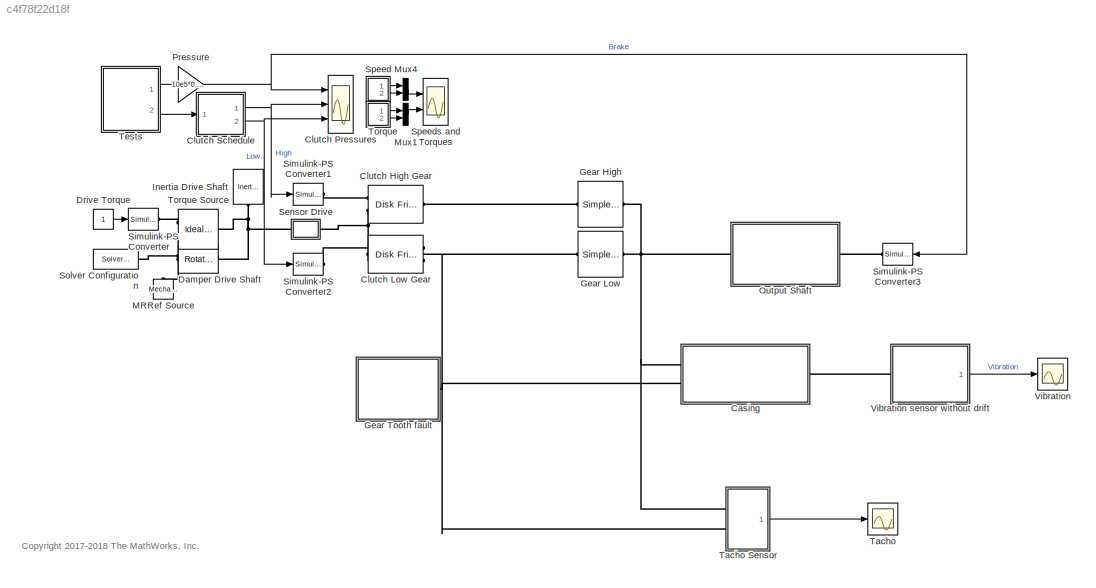
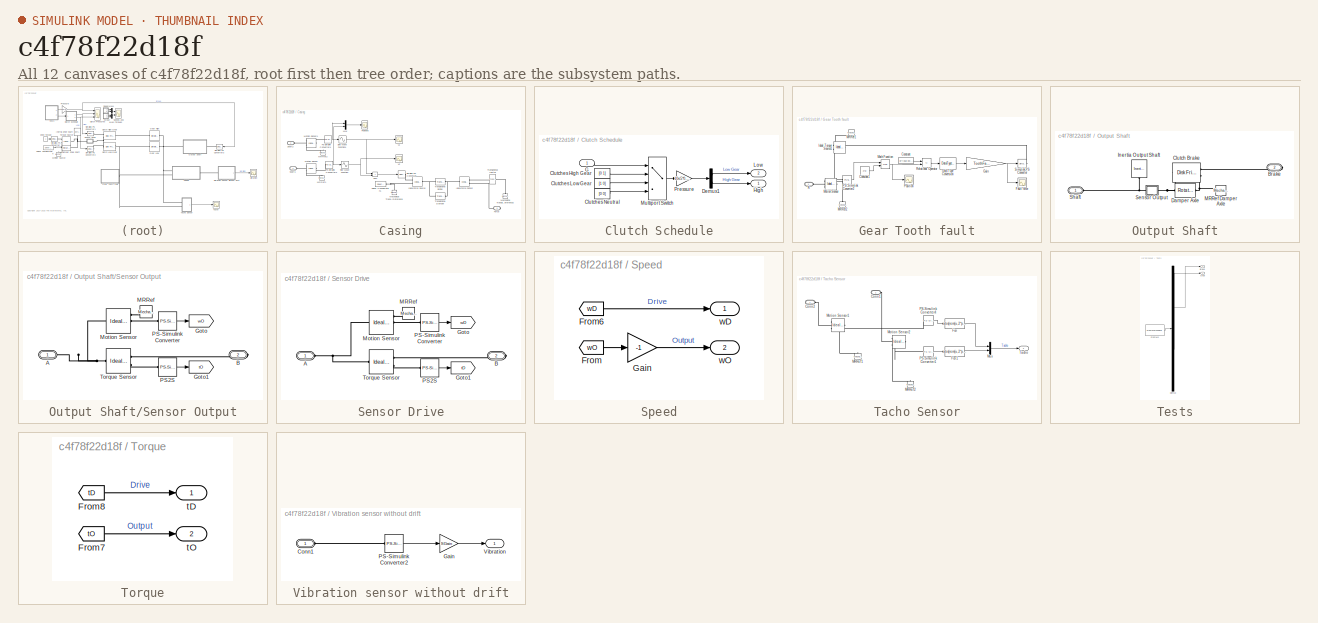
[diagram: thumbnail index - all 12 canvases of the model, root first then tree order]
MODEL slx_c4f78f22d18f
KIND model
CONFIG AbsTol = 1e-3
CONFIG EnableMultiTasking = on
CONFIG FixedStep = auto
CONFIG MaxStep = 0.05
CONFIG MinStep = auto
CONFIG PreLoadFcn = ClutchRadius   = 100;\nDampingCoeff   = 0.1;\nSGain          = 1;\nVariant        = 0;\nToothFaultGain = 0;\nSDrift         = 0;\n
CONFIG RelTol = 1e-3
CONFIG SampleTimeConstraint = Unconstrained
CONFIG SolverName = ode23t
CONFIG StartTime = 0.0
CONFIG StopTime = 20
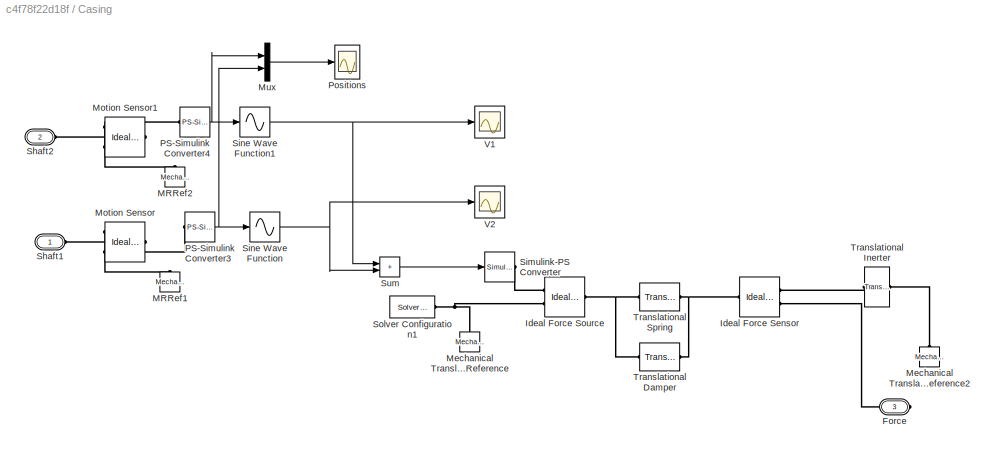
BLOCK [SubSystem] Casing
  Ports = [0, 0, 0, 0, 0, 2, 1]
  RequestExecContextInheritance = off
BLOCK [PMIOPort] Casing/Force
  Port = 3
  Side = Right
BLOCK [Reference] Casing/Ideal Force Sensor  REF=fl_lib/Mechanical/Mechanical Sensors/Ideal Force Sensor
  Ports = [0, 0, 0, 0, 0, 1, 2]
  SourceBlock = fl_lib/Mechanical/Mechanical Sensors/Ideal Force Sensor
  SourceProductBaseCode = PW,SS,VE
  SourceType = Ideal Force Sensor
BLOCK [Reference] Casing/Ideal Force Source  REF=fl_lib/Mechanical/Mechanical Sources/Ideal Force Source
  Ports = [0, 0, 0, 0, 0, 1, 2]
  SourceBlock = fl_lib/Mechanical/Mechanical Sources/Ideal Force Source
  SourceProductBaseCode = PW,SS,VE
  SourceType = Ideal Force Source
BLOCK [Reference] Casing/MRRef1  REF=fl_lib/Mechanical/Rotational Elements/Mechanical
Rotational Reference
  Ports = [0, 0, 0, 0, 0, 1]
  SourceBlock = fl_lib/Mechanical/Rotational Elements/Mechanical\nRotational Reference
  SourceProductBaseCode = PW,SS,VE
  SourceType = Mechanical\nRotational Reference
BLOCK [Reference] Casing/MRRef2  REF=fl_lib/Mechanical/Rotational Elements/Mechanical
Rotational Reference
  Ports = [0, 0, 0, 0, 0, 1]
  SourceBlock = fl_lib/Mechanical/Rotational Elements/Mechanical\nRotational Reference
  SourceProductBaseCode = PW,SS,VE
  SourceType = Mechanical\nRotational Reference
BLOCK [Reference] Casing/Mechanical Translational Reference  REF=fl_lib/Mechanical/Translational
Elements/Mechanical
Translational
Reference
  Ports = [0, 0, 0, 0, 0, 1]
  SourceBlock = fl_lib/Mechanical/Translational\nElements/Mechanical\nTranslational\nReference
  SourceProductBaseCode = PW,SS,VE
  SourceType = Mechanical\nTranslational\nReference
BLOCK [Reference] Casing/Mechanical Translational Reference2  REF=fl_lib/Mechanical/Translational
Elements/Mechanical
Translational
Reference
  Ports = [0, 0, 0, 0, 0, 1]
  SourceBlock = fl_lib/Mechanical/Translational\nElements/Mechanical\nTranslational\nReference
  SourceProductBaseCode = PW,SS,VE
  SourceType = Mechanical\nTranslational\nReference
BLOCK [Reference] Casing/Motion Sensor  REF=fl_lib/Mechanical/Mechanical Sensors/Ideal Rotational
Motion Sensor
  Ports = [0, 0, 0, 0, 0, 1, 3]
  SourceBlock = fl_lib/Mechanical/Mechanical Sensors/Ideal Rotational\nMotion Sensor
  SourceProductBaseCode = PW,SS,VE
  SourceType = Ideal Rotational\nMotion Sensor
BLOCK [Reference] Casing/Motion Sensor1  REF=fl_lib/Mechanical/Mechanical Sensors/Ideal Rotational
Motion Sensor
  Ports = [0, 0, 0, 0, 0, 1, 3]
  SourceBlock = fl_lib/Mechanical/Mechanical Sensors/Ideal Rotational\nMotion Sensor
  SourceProductBaseCode = PW,SS,VE
  SourceType = Ideal Rotational\nMotion Sensor
BLOCK [Mux] Casing/Mux
  DisplayOption = bar
  Inputs = 2
  Ports = [2, 1]
BLOCK [Reference] Casing/PS-Simulink Converter3  REF=nesl_utility/PS-Simulink
Converter
  Ports = [0, 1, 0, 0, 0, 1]
  SourceBlock = nesl_utility/PS-Simulink\nConverter
  SourceProductBaseCode = SS,PW,VE
  SourceType = PS-Simulink\nConverter
BLOCK [Reference] Casing/PS-Simulink Converter4  REF=nesl_utility/PS-Simulink
Converter
  Ports = [0, 1, 0, 0, 0, 1]
  SourceBlock = nesl_utility/PS-Simulink\nConverter
  SourceProductBaseCode = SS,PW,VE
  SourceType = PS-Simulink\nConverter
BLOCK [Scope] Casing/Positions
  Floating = off
  NumInputPorts = 1
  Ports = [1]
  ScopeSpecificationString = Simulink.scopes.TimeScopeBlockCfg('CurrentConfiguration', extmgr.ConfigurationSet(extmgr.Configuration('Core','General UI',true),extmgr.Configuration('Core','Source UI',true),extmgr.Configuration('Sources','WiredSimulink',true,'DataLoggingSaveFormat','StructureWithTime','DataLoggingMaxPoints','50000','DataLoggingDecimation','1','DataLoggingDecimateData',true,'DataLoggingVariableName','ScopeData1')...<+1967ch>
BLOCK [PMIOPort] Casing/Shaft1
  NameLocation = top
  Side = Left
BLOCK [PMIOPort] Casing/Shaft2
  NameLocation = top
  Port = 2
  Side = Left
BLOCK [Reference] Casing/Simulink-PS Converter  REF=nesl_utility/Simulink-PS
Converter
  Ports = [1, 0, 0, 0, 0, 0, 1]
  SourceBlock = nesl_utility/Simulink-PS\nConverter
  SourceProductBaseCode = SS,PW,VE
  SourceType = Simulink-PS\nConverter
BLOCK [Sin] Casing/Sine Wave Function
  Ports = [1, 1]
  SampleTime = 0
  TimeSource = Use external signal
BLOCK [Sin] Casing/Sine Wave Function1
  Ports = [1, 1]
  SampleTime = 0
  TimeSource = Use external signal
BLOCK [Reference] Casing/Solver Configuration1  REF=nesl_utility/Solver
Configuration
  Ports = [0, 0, 0, 0, 0, 0, 1]
  SourceBlock = nesl_utility/Solver\nConfiguration
  SourceProductBaseCode = SS,PW,VE
  SourceType = Solver\nConfiguration
BLOCK [Sum] Casing/Sum
  IconShape = rectangular
  Ports = [2, 1]
BLOCK [Reference] Casing/Translational Damper  REF=fl_lib/Mechanical/Translational
Elements/Translational Damper
  Ports = [0, 0, 0, 0, 0, 1, 1]
  SourceBlock = fl_lib/Mechanical/Translational\nElements/Translational Damper
  SourceProductBaseCode = PW,SS,VE
  SourceType = Translational Damper
BLOCK [Reference] Casing/Translational Inerter  REF=fl_lib/Mechanical/Translational
Elements/Translational
Inerter
  Ports = [0, 0, 0, 0, 0, 1, 1]
  SourceBlock = fl_lib/Mechanical/Translational\nElements/Translational\nInerter
  SourceProductBaseCode = PW,SS,VE
  SourceType = Translational\nInerter
BLOCK [Reference] Casing/Translational Spring  REF=fl_lib/Mechanical/Translational
Elements/Translational Spring
  Ports = [0, 0, 0, 0, 0, 1, 1]
  SourceBlock = fl_lib/Mechanical/Translational\nElements/Translational Spring
  SourceProductBaseCode = PW,SS,VE
  SourceType = Translational Spring
BLOCK [Scope] Casing/V1
  Floating = off
  NumInputPorts = 1
  Ports = [1]
  ScopeSpecificationString = Simulink.scopes.TimeScopeBlockCfg('CurrentConfiguration', extmgr.ConfigurationSet(extmgr.Configuration('Core','General UI',true),extmgr.Configuration('Core','Source UI',true),extmgr.Configuration('Sources','WiredSimulink',true,'DataLoggingSaveFormat','StructureWithTime','DataLoggingMaxPoints','50000','DataLoggingDecimation','1','DataLoggingDecimateData',true,'DataLoggingVariableName','CaseForce1')...<+1957ch>
BLOCK [Scope] Casing/V2
  Floating = off
  NumInputPorts = 1
  Ports = [1]
  ScopeSpecificationString = Simulink.scopes.TimeScopeBlockCfg('CurrentConfiguration', extmgr.ConfigurationSet(extmgr.Configuration('Core','General UI',true),extmgr.Configuration('Core','Source UI',true),extmgr.Configuration('Sources','WiredSimulink',true,'DataLoggingSaveFormat','StructureWithTime','DataLoggingMaxPoints','50000','DataLoggingDecimation','1','DataLoggingDecimateData',true,'DataLoggingVariableName','CaseForce2')...<+1960ch>
BLOCK [Reference] Clutch High Gear  REF=sdl_lib/Clutches/Disk Friction Clutch
  NameLocation = top
  Ports = [0, 0, 0, 0, 0, 2, 1]
  SourceBlock = sdl_lib/Clutches/Disk Friction Clutch
  SourceProductBaseCode = LD
  SourceType = Disk Friction Clutch
BLOCK [Reference] Clutch Low Gear  REF=sdl_lib/Clutches/Disk Friction Clutch
  Ports = [0, 0, 0, 0, 0, 2, 1]
  SourceBlock = sdl_lib/Clutches/Disk Friction Clutch
  SourceProductBaseCode = LD
  SourceType = Disk Friction Clutch
BLOCK [Scope] Clutch Pressures
  Floating = off
  NumInputPorts = 3
  Ports = [3]
  ScopeSpecificationString = Simulink.scopes.TimeScopeBlockCfg('CurrentConfiguration', extmgr.ConfigurationSet(extmgr.Configuration('Core','General UI',true),extmgr.Configuration('Core','Source UI',true),extmgr.Configuration('Sources','WiredSimulink',true,'DataLoggingVariableName','ScopeData1','DataLoggingSaveFormat','StructureWithTime','DataLoggingMaxPoints','50000','DataLoggingLimitDataPoints',true,'DataLoggingDecimation','...<+2015ch>
BLOCK [SubSystem] Clutch Schedule
  Ports = [1, 2]
  RequestExecContextInheritance = off
BLOCK [Constant] Clutch Schedule/Clutches High Gear
  Value = [0 1]
BLOCK [Constant] Clutch Schedule/Clutches Low Gear
  Value = [1 0]
BLOCK [Constant] Clutch Schedule/Clutches Neutral
  Value = [0 0]
BLOCK [Demux] Clutch Schedule/Demux1
  Outputs = 2
  Ports = [1, 2]
BLOCK [Inport] Clutch Schedule/G
BLOCK [Outport] Clutch Schedule/High
  VectorParamsAs1DForOutWhenUnconnected = off
BLOCK [Outport] Clutch Schedule/Low
  NameLocation = top
  Port = 2
  VectorParamsAs1DForOutWhenUnconnected = off
BLOCK [MultiPortSwitch] Clutch Schedule/Multiport Switch
  DataPortIndices = {2,1,0}
  DataPortOrder = Specify indices
  InputSameDT = off
  Ports = [4, 1]
  SaturateOnIntegerOverflow = off
BLOCK [Gain] Clutch Schedule/Pressure
  Gain = 10e5*0.05
  OutDataTypeStr = Inherit: Same as input
  ParamDataTypeStr = Inherit: Same as input
  SaturateOnIntegerOverflow = on
BLOCK [Reference] Damper Drive Shaft  REF=fl_lib/Mechanical/Rotational Elements/Rotational Damper
  Ports = [0, 0, 0, 0, 0, 1, 1]
  SourceBlock = fl_lib/Mechanical/Rotational Elements/Rotational Damper
  SourceProductBaseCode = PW,SS,VE
  SourceType = Rotational Damper
BLOCK [Constant] Drive Torque
  NameLocation = top
BLOCK [Reference] Gear High  REF=sdl_lib/Gears/Simple Gear
  NameLocation = top
  Ports = [0, 0, 0, 0, 0, 1, 1]
  SourceBlock = sdl_lib/Gears/Simple Gear
  SourceProductBaseCode = LD
  SourceType = Simple Gear
BLOCK [Reference] Gear Low  REF=sdl_lib/Gears/Simple Gear
  Ports = [0, 0, 0, 0, 0, 1, 1]
  SourceBlock = sdl_lib/Gears/Simple Gear
  SourceProductBaseCode = LD
  SourceType = Simple Gear
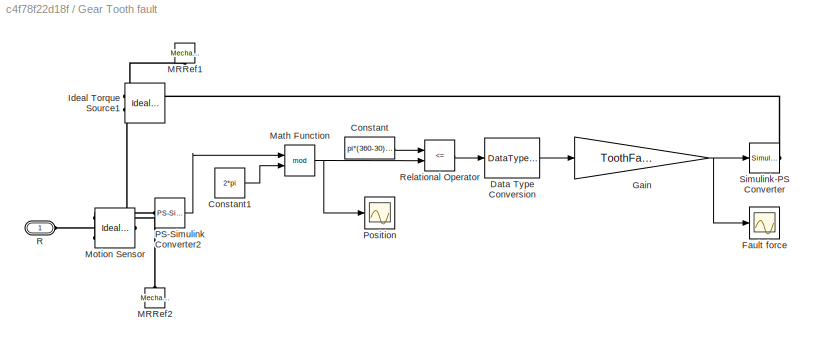
BLOCK [SubSystem] Gear Tooth fault
  Ports = [0, 0, 0, 0, 0, 1]
  RequestExecContextInheritance = off
BLOCK [Constant] Gear Tooth fault/Constant
  Value = pi*(360-30)/180
BLOCK [Constant] Gear Tooth fault/Constant1
  Value = 2*pi
BLOCK [DataTypeConversion] Gear Tooth fault/Data Type Conversion
  OutDataTypeStr = double
  RndMeth = Floor
  SaturateOnIntegerOverflow = off
BLOCK [Scope] Gear Tooth fault/Fault force
  Floating = off
  NumInputPorts = 1
  Ports = [1]
  ScopeSpecificationString = Simulink.scopes.TimeScopeBlockCfg('CurrentConfiguration', extmgr.ConfigurationSet(extmgr.Configuration('Core','General UI',true),extmgr.Configuration('Core','Source UI',true),extmgr.Configuration('Sources','WiredSimulink',true,'DataLoggingSaveFormat','StructureWithTime','DataLoggingMaxPoints','50000','DataLoggingLimitDataPoints',true,'DataLoggingDecimation','1','DataLoggingDecimateData',true,'Data...<+1963ch>
BLOCK [Gain] Gear Tooth fault/Gain
  Gain = ToothFaultGain
BLOCK [Reference] Gear Tooth fault/Ideal Torque Source1  REF=fl_lib/Mechanical/Mechanical Sources/Ideal Torque Source
  NameLocation = top
  Ports = [0, 0, 0, 0, 0, 1, 2]
  SourceBlock = fl_lib/Mechanical/Mechanical Sources/Ideal Torque Source
  SourceProductBaseCode = PW,SS,VE
  SourceType = Ideal Torque Source
BLOCK [Reference] Gear Tooth fault/MRRef1  REF=fl_lib/Mechanical/Rotational Elements/Mechanical
Rotational Reference
  NameLocation = left
  Ports = [0, 0, 0, 0, 0, 1]
  SourceBlock = fl_lib/Mechanical/Rotational Elements/Mechanical\nRotational Reference
  SourceProductBaseCode = PW,SS,VE
  SourceType = Mechanical\nRotational Reference
BLOCK [Reference] Gear Tooth fault/MRRef2  REF=fl_lib/Mechanical/Rotational Elements/Mechanical
Rotational Reference
  Ports = [0, 0, 0, 0, 0, 1]
  SourceBlock = fl_lib/Mechanical/Rotational Elements/Mechanical\nRotational Reference
  SourceProductBaseCode = PW,SS,VE
  SourceType = Mechanical\nRotational Reference
BLOCK [Math] Gear Tooth fault/Math Function
  Operator = mod
  Ports = [2, 1]
  SignedPower = on
BLOCK [Reference] Gear Tooth fault/Motion Sensor  REF=fl_lib/Mechanical/Mechanical Sensors/Ideal Rotational
Motion Sensor
  Ports = [0, 0, 0, 0, 0, 1, 3]
  SourceBlock = fl_lib/Mechanical/Mechanical Sensors/Ideal Rotational\nMotion Sensor
  SourceProductBaseCode = PW,SS,VE
  SourceType = Ideal Rotational\nMotion Sensor
BLOCK [Reference] Gear Tooth fault/PS-Simulink Converter2  REF=nesl_utility/PS-Simulink
Converter
  Ports = [0, 1, 0, 0, 0, 1]
  SourceBlock = nesl_utility/PS-Simulink\nConverter
  SourceProductBaseCode = SS,PW,VE
  SourceType = PS-Simulink\nConverter
BLOCK [Scope] Gear Tooth fault/Position
  Floating = off
  NumInputPorts = 1
  Ports = [1]
  ScopeSpecificationString = Simulink.scopes.TimeScopeBlockCfg('CurrentConfiguration', extmgr.ConfigurationSet(extmgr.Configuration('Core','General UI',true),extmgr.Configuration('Core','Source UI',true),extmgr.Configuration('Sources','WiredSimulink',true,'DataLoggingSaveFormat','StructureWithTime','DataLoggingMaxPoints','50000','DataLoggingLimitDataPoints',true,'DataLoggingDecimation','1','DataLoggingDecimateData',true,'Data...<+1961ch>
BLOCK [PMIOPort] Gear Tooth fault/R
  Side = Left
BLOCK [RelationalOperator] Gear Tooth fault/Relational Operator
  InputSameDT = off
  Operator = <=
  OutDataTypeStr = boolean
  Ports = [2, 1]
  RndMeth = Simplest
BLOCK [Reference] Gear Tooth fault/Simulink-PS Converter  REF=nesl_utility/Simulink-PS
Converter
  Ports = [1, 0, 0, 0, 0, 0, 1]
  SourceBlock = nesl_utility/Simulink-PS\nConverter
  SourceProductBaseCode = SS,PW,VE
  SourceType = Simulink-PS\nConverter
BLOCK [Reference] Inertia Drive Shaft  REF=fl_lib/Mechanical/Rotational Elements/Inertia
  NameLocation = left
  Ports = [0, 0, 0, 0, 0, 1]
  SourceBlock = fl_lib/Mechanical/Rotational Elements/Inertia
  SourceProductBaseCode = PW,SS,VE
  SourceType = Inertia
BLOCK [Reference] MRRef Source  REF=fl_lib/Mechanical/Rotational Elements/Mechanical
Rotational Reference
  Ports = [0, 0, 0, 0, 0, 1]
  SourceBlock = fl_lib/Mechanical/Rotational Elements/Mechanical\nRotational Reference
  SourceProductBaseCode = PW,SS,VE
  SourceType = Mechanical\nRotational Reference
BLOCK [Mux] Mux1
  DisplayOption = bar
  Inputs = 2
  Ports = [2, 1]
BLOCK [Mux] Mux4
  DisplayOption = bar
  Inputs = 2
  Ports = [2, 1]
BLOCK [SubSystem] Output Shaft
  Ports = [0, 0, 0, 0, 0, 1, 1]
  RequestExecContextInheritance = off
BLOCK [PMIOPort] Output Shaft/Brake
  Port = 2
  Side = Right
BLOCK [Reference] Output Shaft/Clutch Brake  REF=sdl_lib/Clutches/Disk Friction Clutch
  NameLocation = top
  Ports = [0, 0, 0, 0, 0, 2, 1]
  SourceBlock = sdl_lib/Clutches/Disk Friction Clutch
  SourceProductBaseCode = LD
  SourceType = Disk Friction Clutch
BLOCK [Reference] Output Shaft/Damper Axle  REF=fl_lib/Mechanical/Rotational Elements/Rotational Damper
  Ports = [0, 0, 0, 0, 0, 1, 1]
  SourceBlock = fl_lib/Mechanical/Rotational Elements/Rotational Damper
  SourceProductBaseCode = PW,SS,VE
  SourceType = Rotational Damper
BLOCK [Reference] Output Shaft/Inertia Output Shaft  REF=fl_lib/Mechanical/Rotational Elements/Inertia
  Ports = [0, 0, 0, 0, 0, 1]
  SourceBlock = fl_lib/Mechanical/Rotational Elements/Inertia
  SourceProductBaseCode = PW,SS,VE
  SourceType = Inertia
BLOCK [Reference] Output Shaft/MRRef Damper Axle  REF=fl_lib/Mechanical/Rotational Elements/Mechanical
Rotational Reference
  NameLocation = top
  Ports = [0, 0, 0, 0, 0, 1]
  SourceBlock = fl_lib/Mechanical/Rotational Elements/Mechanical\nRotational Reference
  SourceProductBaseCode = PW,SS,VE
  SourceType = Mechanical\nRotational Reference
BLOCK [SubSystem] Output Shaft/Sensor Output
  Ports = [0, 0, 0, 0, 0, 1, 1]
  RequestExecContextInheritance = off
BLOCK [PMIOPort] Output Shaft/Sensor Output/A
  Side = Left
BLOCK [PMIOPort] Output Shaft/Sensor Output/B
  Port = 2
  Side = Right
BLOCK [Goto] Output Shaft/Sensor Output/Goto
  GotoTag = wO
  TagVisibility = global
BLOCK [Goto] Output Shaft/Sensor Output/Goto1
  GotoTag = tO
  TagVisibility = global
BLOCK [Reference] Output Shaft/Sensor Output/MRRef  REF=fl_lib/Mechanical/Rotational Elements/Mechanical
Rotational Reference
  NameLocation = top
  Ports = [0, 0, 0, 0, 0, 1]
  SourceBlock = fl_lib/Mechanical/Rotational Elements/Mechanical\nRotational Reference
  SourceProductBaseCode = PW,SS,VE
  SourceType = Mechanical\nRotational Reference
BLOCK [Reference] Output Shaft/Sensor Output/Motion Sensor  REF=fl_lib/Mechanical/Mechanical Sensors/Ideal Rotational
Motion Sensor
  Ports = [0, 0, 0, 0, 0, 1, 3]
  SourceBlock = fl_lib/Mechanical/Mechanical Sensors/Ideal Rotational\nMotion Sensor
  SourceProductBaseCode = PW,SS,VE
  SourceType = Ideal Rotational\nMotion Sensor
BLOCK [Reference] Output Shaft/Sensor Output/PS-Simulink Converter  REF=nesl_utility/PS-Simulink
Converter
  Ports = [0, 1, 0, 0, 0, 1]
  SourceBlock = nesl_utility/PS-Simulink\nConverter
  SourceProductBaseCode = SS,PW,VE
  SourceType = PS-Simulink\nConverter
BLOCK [Reference] Output Shaft/Sensor Output/PS2S  REF=nesl_utility/PS-Simulink
Converter
  Ports = [0, 1, 0, 0, 0, 1]
  SourceBlock = nesl_utility/PS-Simulink\nConverter
  SourceProductBaseCode = SS,PW,VE
  SourceType = PS-Simulink\nConverter
BLOCK [Reference] Output Shaft/Sensor Output/Torque Sensor  REF=fl_lib/Mechanical/Mechanical Sensors/Ideal Torque Sensor
  Ports = [0, 0, 0, 0, 0, 1, 2]
  SourceBlock = fl_lib/Mechanical/Mechanical Sensors/Ideal Torque Sensor
  SourceProductBaseCode = PW,SS,VE
  SourceType = Ideal Torque Sensor
BLOCK [PMIOPort] Output Shaft/Shaft
  Side = Left
BLOCK [Gain] Pressure
  Gain = 10e5*0.03
  NameLocation = top
  OutDataTypeStr = Inherit: Same as input
  ParamDataTypeStr = Inherit: Same as input
  SaturateOnIntegerOverflow = on
BLOCK [SubSystem] Sensor Drive
  Ports = [0, 0, 0, 0, 0, 1, 1]
  RequestExecContextInheritance = off
BLOCK [PMIOPort] Sensor Drive/A
  Side = Left
BLOCK [PMIOPort] Sensor Drive/B
  NameLocation = top
  Port = 2
  Side = Right
BLOCK [Goto] Sensor Drive/Goto
  GotoTag = wD
  TagVisibility = global
BLOCK [Goto] Sensor Drive/Goto1
  GotoTag = tD
  TagVisibility = global
BLOCK [Reference] Sensor Drive/MRRef  REF=fl_lib/Mechanical/Rotational Elements/Mechanical
Rotational Reference
  NameLocation = top
  Ports = [0, 0, 0, 0, 0, 1]
  SourceBlock = fl_lib/Mechanical/Rotational Elements/Mechanical\nRotational Reference
  SourceProductBaseCode = PW,SS,VE
  SourceType = Mechanical\nRotational Reference
BLOCK [Reference] Sensor Drive/Motion Sensor  REF=fl_lib/Mechanical/Mechanical Sensors/Ideal Rotational
Motion Sensor
  Ports = [0, 0, 0, 0, 0, 1, 3]
  SourceBlock = fl_lib/Mechanical/Mechanical Sensors/Ideal Rotational\nMotion Sensor
  SourceProductBaseCode = PW,SS,VE
  SourceType = Ideal Rotational\nMotion Sensor
BLOCK [Reference] Sensor Drive/PS-Simulink Converter  REF=nesl_utility/PS-Simulink
Converter
  Ports = [0, 1, 0, 0, 0, 1]
  SourceBlock = nesl_utility/PS-Simulink\nConverter
  SourceProductBaseCode = SS,PW,VE
  SourceType = PS-Simulink\nConverter
BLOCK [Reference] Sensor Drive/PS2S  REF=nesl_utility/PS-Simulink
Converter
  Ports = [0, 1, 0, 0, 0, 1]
  SourceBlock = nesl_utility/PS-Simulink\nConverter
  SourceProductBaseCode = SS,PW,VE
  SourceType = PS-Simulink\nConverter
BLOCK [Reference] Sensor Drive/Torque Sensor  REF=fl_lib/Mechanical/Mechanical Sensors/Ideal Torque Sensor
  Ports = [0, 0, 0, 0, 0, 1, 2]
  SourceBlock = fl_lib/Mechanical/Mechanical Sensors/Ideal Torque Sensor
  SourceProductBaseCode = PW,SS,VE
  SourceType = Ideal Torque Sensor
BLOCK [Reference] Simulink-PS Converter  REF=nesl_utility/Simulink-PS
Converter
  Ports = [1, 0, 0, 0, 0, 0, 1]
  SourceBlock = nesl_utility/Simulink-PS\nConverter
  SourceProductBaseCode = SS,PW,VE
  SourceType = Simulink-PS\nConverter
BLOCK [Reference] Simulink-PS Converter1  REF=nesl_utility/Simulink-PS
Converter
  Ports = [1, 0, 0, 0, 0, 0, 1]
  SourceBlock = nesl_utility/Simulink-PS\nConverter
  SourceProductBaseCode = SS,PW,VE
  SourceType = Simulink-PS\nConverter
BLOCK [Reference] Simulink-PS Converter2  REF=nesl_utility/Simulink-PS
Converter
  Ports = [1, 0, 0, 0, 0, 0, 1]
  SourceBlock = nesl_utility/Simulink-PS\nConverter
  SourceProductBaseCode = SS,PW,VE
  SourceType = Simulink-PS\nConverter
BLOCK [Reference] Simulink-PS Converter3  REF=nesl_utility/Simulink-PS
Converter
  NameLocation = top
  Ports = [1, 0, 0, 0, 0, 0, 1]
  SourceBlock = nesl_utility/Simulink-PS\nConverter
  SourceProductBaseCode = SS,PW,VE
  SourceType = Simulink-PS\nConverter
BLOCK [Reference] Solver Configuration  REF=nesl_utility/Solver
Configuration
  Ports = [0, 0, 0, 0, 0, 0, 1]
  SourceBlock = nesl_utility/Solver\nConfiguration
  SourceProductBaseCode = SS,PW,VE
  SourceType = Solver\nConfiguration
BLOCK [SubSystem] Speed
  NameLocation = top
  Ports = [0, 2]
  RequestExecContextInheritance = off
BLOCK [From] Speed/From
  GotoTag = wO
  TagVisibility = global
BLOCK [From] Speed/From6
  GotoTag = wD
  TagVisibility = global
BLOCK [Gain] Speed/Gain
  Gain = -1
BLOCK [Outport] Speed/wD
  VectorParamsAs1DForOutWhenUnconnected = off
BLOCK [Outport] Speed/wO
  Port = 2
  VectorParamsAs1DForOutWhenUnconnected = off
BLOCK [Scope] Speeds and Torques
  Floating = off
  NumInputPorts = 2
  Ports = [2]
  ScopeSpecificationString = Simulink.scopes.TimeScopeBlockCfg('CurrentConfiguration', extmgr.ConfigurationSet(extmgr.Configuration('Core','General UI',true),extmgr.Configuration('Core','Source UI',true),extmgr.Configuration('Sources','WiredSimulink',true,'DataLoggingSaveFormat','StructureWithTime','DataLoggingMaxPoints','50000','DataLoggingLimitDataPoints',true,'DataLoggingDecimation','1','DataLoggingDecimateData',true),extm...<+2744ch>
BLOCK [Scope] Tacho
  Floating = off
  NumInputPorts = 1
  Ports = [1]
  ScopeSpecificationString = Simulink.scopes.TimeScopeBlockCfg('CurrentConfiguration', extmgr.ConfigurationSet(extmgr.Configuration('Core','General UI',true),extmgr.Configuration('Core','Source UI',true),extmgr.Configuration('Sources','WiredSimulink',true,'DataLoggingSaveFormat','StructureWithTime','DataLoggingMaxPoints','50000','DataLoggingDecimation','1','DataLoggingDecimateData',true,'DataLoggingVariableName','Tacho'),extm...<+1957ch>
BLOCK [SubSystem] Tacho Sensor
  Ports = [0, 1, 0, 0, 0, 2]
  RequestExecContextInheritance = off
BLOCK [PMIOPort] Tacho Sensor/Conn1
  Side = Left
BLOCK [PMIOPort] Tacho Sensor/Conn2
  Port = 2
  Side = Left
BLOCK [Fcn] Tacho Sensor/Fcn
  Expr = abs(rem(u,2*pi)) < pi/1000
BLOCK [Fcn] Tacho Sensor/Fcn1
  Expr = abs(rem(u,2*pi)) < pi/1000
BLOCK [Reference] Tacho Sensor/MRRef1  REF=fl_lib/Mechanical/Rotational Elements/Mechanical
Rotational Reference
  Ports = [0, 0, 0, 0, 0, 1]
  SourceBlock = fl_lib/Mechanical/Rotational Elements/Mechanical\nRotational Reference
  SourceProductBaseCode = PW,SS,VE
  SourceType = Mechanical\nRotational Reference
BLOCK [Reference] Tacho Sensor/MRRef2  REF=fl_lib/Mechanical/Rotational Elements/Mechanical
Rotational Reference
  Ports = [0, 0, 0, 0, 0, 1]
  SourceBlock = fl_lib/Mechanical/Rotational Elements/Mechanical\nRotational Reference
  SourceProductBaseCode = PW,SS,VE
  SourceType = Mechanical\nRotational Reference
BLOCK [Reference] Tacho Sensor/Motion Sensor1  REF=fl_lib/Mechanical/Mechanical Sensors/Ideal Rotational
Motion Sensor
  Ports = [0, 0, 0, 0, 0, 1, 3]
  SourceBlock = fl_lib/Mechanical/Mechanical Sensors/Ideal Rotational\nMotion Sensor
  SourceProductBaseCode = PW,SS,VE
  SourceType = Ideal Rotational\nMotion Sensor
BLOCK [Reference] Tacho Sensor/Motion Sensor2  REF=fl_lib/Mechanical/Mechanical Sensors/Ideal Rotational
Motion Sensor
  Ports = [0, 0, 0, 0, 0, 1, 3]
  SourceBlock = fl_lib/Mechanical/Mechanical Sensors/Ideal Rotational\nMotion Sensor
  SourceProductBaseCode = PW,SS,VE
  SourceType = Ideal Rotational\nMotion Sensor
BLOCK [Mux] Tacho Sensor/Mux
  DisplayOption = bar
  Inputs = 2
  Ports = [2, 1]
BLOCK [Reference] Tacho Sensor/PS-Simulink Converter1  REF=nesl_utility/PS-Simulink
Converter
  Ports = [0, 1, 0, 0, 0, 1]
  SourceBlock = nesl_utility/PS-Simulink\nConverter
  SourceProductBaseCode = SS,PW,VE
  SourceType = PS-Simulink\nConverter
BLOCK [Reference] Tacho Sensor/PS-Simulink Converter4  REF=nesl_utility/PS-Simulink
Converter
  Ports = [0, 1, 0, 0, 0, 1]
  SourceBlock = nesl_utility/PS-Simulink\nConverter
  SourceProductBaseCode = SS,PW,VE
  SourceType = PS-Simulink\nConverter
BLOCK [Outport] Tacho Sensor/Tacho
  VectorParamsAs1DForOutWhenUnconnected = off
BLOCK [SubSystem] Tests
  ClipboardFcn = sigbuilder_block('clipboard');
  CloseFcn = sigbuilder_block('close');
  ContinueFcn = sigbuilder_block('continue');
  CopyFcn = sigbuilder_block('copy');
  DeleteFcn = sigbuilder_block('delete');
  LoadFcn = sigbuilder_block('load');
  MaskHideContents = on
  ModelCloseFcn = sigbuilder_block('modelClose');
  NameChangeFcn = sigbuilder_block('namechange');
  OpenFcn = sigbuilder_block('open',[329.25 294 687 318.75 ]);
  PauseFcn = sigbuilder_block('pause');
  Ports = [0, 2]
  PreSaveFcn = sigbuilder_block('preSave');
  RequestExecContextInheritance = off
  StartFcn = sigbuilder_block('start');
  StopFcn = sigbuilder_block('stop');
  Tag = STV Subsys
BLOCK [Outport] Tests/Brake
  Tag = STV Outport
  VectorParamsAs1DForOutWhenUnconnected = off
BLOCK [Demux] Tests/Demux
  DisplayOption = none
  Outputs = 2
  Ports = [1, 2]
  Tag = STV Demux
BLOCK [FromWorkspace] Tests/FromWs
  Tag = STV FromWs
  VariableName = tuvar
BLOCK [Outport] Tests/Gear
  Port = 2
  Tag = STV Outport
  VectorParamsAs1DForOutWhenUnconnected = off
BLOCK [SubSystem] Torque
  Ports = [0, 2]
  RequestExecContextInheritance = off
BLOCK [Reference] Torque Source  REF=fl_lib/Mechanical/Mechanical Sources/Ideal Torque Source
  Ports = [0, 0, 0, 0, 0, 1, 2]
  SourceBlock = fl_lib/Mechanical/Mechanical Sources/Ideal Torque Source
  SourceProductBaseCode = PW,SS,VE
  SourceType = Ideal Torque Source
BLOCK [From] Torque/From7
  GotoTag = tO
  TagVisibility = global
BLOCK [From] Torque/From8
  GotoTag = tD
  TagVisibility = global
BLOCK [Outport] Torque/tD
  VectorParamsAs1DForOutWhenUnconnected = off
BLOCK [Outport] Torque/tO
  Port = 2
  VectorParamsAs1DForOutWhenUnconnected = off
BLOCK [Scope] Vibration
  Floating = off
  NumInputPorts = 1
  Ports = [1]
  ScopeSpecificationString = Simulink.scopes.TimeScopeBlockCfg('CurrentConfiguration', extmgr.ConfigurationSet(extmgr.Configuration('Core','General UI',true),extmgr.Configuration('Core','Source UI',true),extmgr.Configuration('Sources','WiredSimulink',true,'DataLoggingSaveFormat','StructureWithTime','DataLoggingMaxPoints','50000','DataLoggingDecimation','1','DataLoggingDecimateData',true,'DataLoggingVariableName','CaseForce'),...<+1966ch>
BLOCK [SubSystem] Vibration sensor without drift
  Ports = [0, 1, 0, 0, 0, 1]
  RequestExecContextInheritance = off
  VariantControl = Variant < 0
BLOCK [PMIOPort] Vibration sensor without drift/Conn1
  Side = Left
BLOCK [Gain] Vibration sensor without drift/Gain
  Gain = SGain
BLOCK [Reference] Vibration sensor without drift/PS-Simulink Converter2  REF=nesl_utility/PS-Simulink
Converter
  Ports = [0, 1, 0, 0, 0, 1]
  SourceBlock = nesl_utility/PS-Simulink\nConverter
  SourceProductBaseCode = SS,PW,VE
  SourceType = PS-Simulink\nConverter
BLOCK [Outport] Vibration sensor without drift/Vibration
  VectorParamsAs1DForOutWhenUnconnected = off
ANNOTATION (root): <copyright redacted>
LINE Casing/Mux:1 -> Casing/Positions:1
NET Casing/PS-Simulink Converter3:1 -> Casing/Mux:2, Casing/Sine Wave Function:1
NET Casing/PS-Simulink Converter4:1 -> Casing/Mux:1, Casing/Sine Wave Function1:1
NET Casing/Sine Wave Function1:1 -> Casing/Sum:1, Casing/V1:1
NET Casing/Sine Wave Function:1 -> Casing/Sum:2, Casing/V2:1
LINE Casing/Sum:1 -> Casing/Simulink-PS Converter:1
LINE Clutch Schedule/Clutches High Gear:1 -> Clutch Schedule/Multiport Switch:2
LINE Clutch Schedule/Clutches Low Gear:1 -> Clutch Schedule/Multiport Switch:3
LINE Clutch Schedule/Clutches Neutral:1 -> Clutch Schedule/Multiport Switch:4
LINE Clutch Schedule/Demux1:1 -> Clutch Schedule/Low:1
LINE Clutch Schedule/Demux1:2 -> Clutch Schedule/High:1
LINE Clutch Schedule/G:1 -> Clutch Schedule/Multiport Switch:1
LINE Clutch Schedule/Multiport Switch:1 -> Clutch Schedule/Pressure:1
LINE Clutch Schedule/Pressure:1 -> Clutch Schedule/Demux1:1
NET Clutch Schedule:1 -> Clutch Pressures:2, Simulink-PS Converter1:1
NET Clutch Schedule:2 -> Clutch Pressures:3, Simulink-PS Converter2:1
LINE Drive Torque:1 -> Simulink-PS Converter:1
LINE Gear Tooth fault/Constant1:1 -> Gear Tooth fault/Math Function:2
LINE Gear Tooth fault/Constant:1 -> Gear Tooth fault/Relational Operator:1
LINE Gear Tooth fault/Data Type Conversion:1 -> Gear Tooth fault/Gain:1
NET Gear Tooth fault/Gain:1 -> Gear Tooth fault/Fault force:1, Gear Tooth fault/Simulink-PS Converter:1
NET Gear Tooth fault/Math Function:1 -> Gear Tooth fault/Position:1, Gear Tooth fault/Relational Operator:2
LINE Gear Tooth fault/PS-Simulink Converter2:1 -> Gear Tooth fault/Math Function:1
LINE Gear Tooth fault/Relational Operator:1 -> Gear Tooth fault/Data Type Conversion:1
LINE Mux1:1 -> Speeds and Torques:2
LINE Mux4:1 -> Speeds and Torques:1
LINE Output Shaft/Sensor Output/PS-Simulink Converter:1 -> Output Shaft/Sensor Output/Goto:1
LINE Output Shaft/Sensor Output/PS2S:1 -> Output Shaft/Sensor Output/Goto1:1
NET Pressure:1 -> Clutch Pressures:1, Simulink-PS Converter3:1
LINE Sensor Drive/PS-Simulink Converter:1 -> Sensor Drive/Goto:1
LINE Sensor Drive/PS2S:1 -> Sensor Drive/Goto1:1
LINE Speed/From6:1 -> Speed/wD:1
LINE Speed/From:1 -> Speed/Gain:1
LINE Speed/Gain:1 -> Speed/wO:1
LINE Speed:1 -> Mux4:1
LINE Speed:2 -> Mux4:2
LINE Tacho Sensor/Fcn1:1 -> Tacho Sensor/Mux:2
LINE Tacho Sensor/Fcn:1 -> Tacho Sensor/Mux:1
LINE Tacho Sensor/Mux:1 -> Tacho Sensor/Tacho:1
LINE Tacho Sensor/PS-Simulink Converter1:1 -> Tacho Sensor/Fcn1:1
LINE Tacho Sensor/PS-Simulink Converter4:1 -> Tacho Sensor/Fcn:1
LINE Tacho Sensor:1 -> Tacho:1
LINE Tests:1 -> Pressure:1
LINE Tests:2 -> Clutch Schedule:1
LINE Torque/From7:1 -> Torque/tO:1
LINE Torque/From8:1 -> Torque/tD:1
LINE Torque:1 -> Mux1:1
LINE Torque:2 -> Mux1:2
LINE Vibration sensor without drift/Gain:1 -> Vibration sensor without drift/Vibration:1
LINE Vibration sensor without drift/PS-Simulink Converter2:1 -> Vibration sensor without drift/Gain:1
LINE Vibration sensor without drift:1 -> Vibration:1
PLINE Casing/Force:RConn1 -- Casing/Ideal Force Sensor:RConn2
PNET net1: Casing/Ideal Force Sensor:LConn1 -- Casing/Translational Damper:RConn1 -- Casing/Translational Spring:RConn1
PLINE Casing/Ideal Force Sensor:RConn1 -- Casing/Translational Inerter:LConn1
PNET net2: Casing/Ideal Force Source:LConn1 -- Casing/Translational Damper:LConn1 -- Casing/Translational Spring:LConn1
PLINE Casing/Ideal Force Source:RConn1 -- Casing/Simulink-PS Converter:RConn1
PNET net3: Casing/Ideal Force Source:RConn2 -- Casing/Mechanical Translational Reference:LConn1 -- Casing/Solver Configuration1:RConn1
PLINE Casing/MRRef1:LConn1 -- Casing/Motion Sensor:RConn1
PLINE Casing/MRRef2:LConn1 -- Casing/Motion Sensor1:RConn1
PLINE Casing/Mechanical Translational Reference2:LConn1 -- Casing/Translational Inerter:RConn1
PLINE Casing/Motion Sensor1:LConn1 -- Casing/Shaft2:RConn1
PLINE Casing/Motion Sensor1:RConn3 -- Casing/PS-Simulink Converter4:LConn1
PLINE Casing/Motion Sensor:LConn1 -- Casing/Shaft1:RConn1
PLINE Casing/Motion Sensor:RConn3 -- Casing/PS-Simulink Converter3:LConn1
PNET net4: Casing:LConn1 -- Gear High:RConn1 -- Gear Low:RConn1 -- Output Shaft:LConn1 -- Tacho Sensor:LConn1
PNET net5: Casing:LConn2 -- Clutch Low Gear:RConn1 -- Gear Low:LConn1 -- Gear Tooth fault:LConn1 -- Tacho Sensor:LConn2
PLINE Casing:RConn1 -- Vibration sensor without drift:LConn1
PLINE Clutch High Gear:LConn1 -- Simulink-PS Converter1:RConn1
PNET net6: Clutch High Gear:LConn2 -- Clutch Low Gear:LConn2 -- Sensor Drive:RConn1
PLINE Clutch High Gear:RConn1 -- Gear High:LConn1
PLINE Clutch Low Gear:LConn1 -- Simulink-PS Converter2:RConn1
PNET net7: Damper Drive Shaft:LConn1 -- Inertia Drive Shaft:LConn1 -- Sensor Drive:LConn1 -- Torque Source:LConn1
PNET net8: Damper Drive Shaft:RConn1 -- MRRef Source:LConn1 -- Solver Configuration:RConn1 -- Torque Source:RConn2
PNET net9: Gear Tooth fault/Ideal Torque Source1:LConn1 -- Gear Tooth fault/Motion Sensor:LConn1 -- Gear Tooth fault/R:RConn1
PLINE Gear Tooth fault/Ideal Torque Source1:RConn1 -- Gear Tooth fault/Simulink-PS Converter:RConn1
PLINE Gear Tooth fault/Ideal Torque Source1:RConn2 -- Gear Tooth fault/MRRef1:LConn1
PLINE Gear Tooth fault/MRRef2:LConn1 -- Gear Tooth fault/Motion Sensor:RConn1
PLINE Gear Tooth fault/Motion Sensor:RConn3 -- Gear Tooth fault/PS-Simulink Converter2:LConn1
PLINE Output Shaft/Brake:RConn1 -- Output Shaft/Clutch Brake:LConn1
PNET net10: Output Shaft/Clutch Brake:LConn2 -- Output Shaft/Damper Axle:RConn1 -- Output Shaft/MRRef Damper Axle:LConn1
PNET net11: Output Shaft/Clutch Brake:RConn1 -- Output Shaft/Damper Axle:LConn1 -- Output Shaft/Sensor Output:RConn1
PNET net12: Output Shaft/Inertia Output Shaft:LConn1 -- Output Shaft/Sensor Output:LConn1 -- Output Shaft/Shaft:RConn1
PNET net13: Output Shaft/Sensor Output/A:RConn1 -- Output Shaft/Sensor Output/Motion Sensor:LConn1 -- Output Shaft/Sensor Output/Torque Sensor:LConn1
PLINE Output Shaft/Sensor Output/B:RConn1 -- Output Shaft/Sensor Output/Torque Sensor:RConn1
PLINE Output Shaft/Sensor Output/MRRef:LConn1 -- Output Shaft/Sensor Output/Motion Sensor:RConn1
PLINE Output Shaft/Sensor Output/Motion Sensor:RConn2 -- Output Shaft/Sensor Output/PS-Simulink Converter:LConn1
PLINE Output Shaft/Sensor Output/PS2S:LConn1 -- Output Shaft/Sensor Output/Torque Sensor:RConn2
PLINE Output Shaft:RConn1 -- Simulink-PS Converter3:RConn1
PNET net14: Sensor Drive/A:RConn1 -- Sensor Drive/Motion Sensor:LConn1 -- Sensor Drive/Torque Sensor:LConn1
PLINE Sensor Drive/B:RConn1 -- Sensor Drive/Torque Sensor:RConn1
PLINE Sensor Drive/MRRef:LConn1 -- Sensor Drive/Motion Sensor:RConn1
PLINE Sensor Drive/Motion Sensor:RConn2 -- Sensor Drive/PS-Simulink Converter:LConn1
PLINE Sensor Drive/PS2S:LConn1 -- Sensor Drive/Torque Sensor:RConn2
PLINE Simulink-PS Converter:RConn1 -- Torque Source:RConn1
PLINE Tacho Sensor/Conn1:RConn1 -- Tacho Sensor/Motion Sensor2:LConn1
PLINE Tacho Sensor/Conn2:RConn1 -- Tacho Sensor/Motion Sensor1:LConn1
PLINE Tacho Sensor/MRRef1:LConn1 -- Tacho Sensor/Motion Sensor1:RConn1
PLINE Tacho Sensor/MRRef2:LConn1 -- Tacho Sensor/Motion Sensor2:RConn1
PLINE Tacho Sensor/Motion Sensor1:RConn3 -- Tacho Sensor/PS-Simulink Converter4:LConn1
PLINE Tacho Sensor/Motion Sensor2:RConn3 -- Tacho Sensor/PS-Simulink Converter1:LConn1
PLINE Vibration sensor without drift/Conn1:RConn1 -- Vibration sensor without drift/PS-Simulink Converter2:LConn1
note: NET lines group one-source signal fan-out (src -> all destinations, sorted); 1:1 wires keep LINE; PNET lines group multi-terminal physical nets as a canonical sorted terminal list (undirected conserving connections); 2-terminal nets keep the pairwise PLINE form
